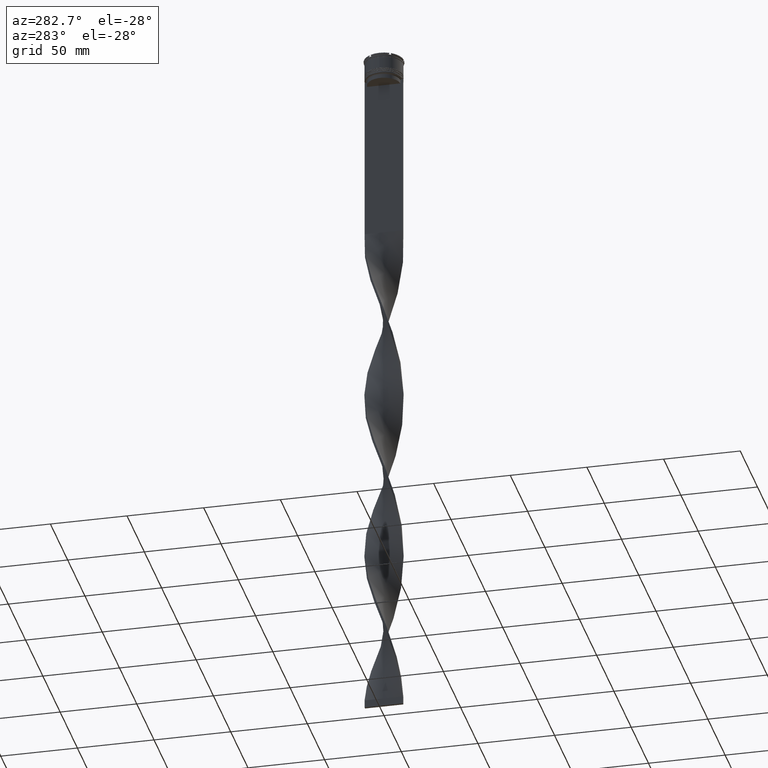
[diagram: clean part render]
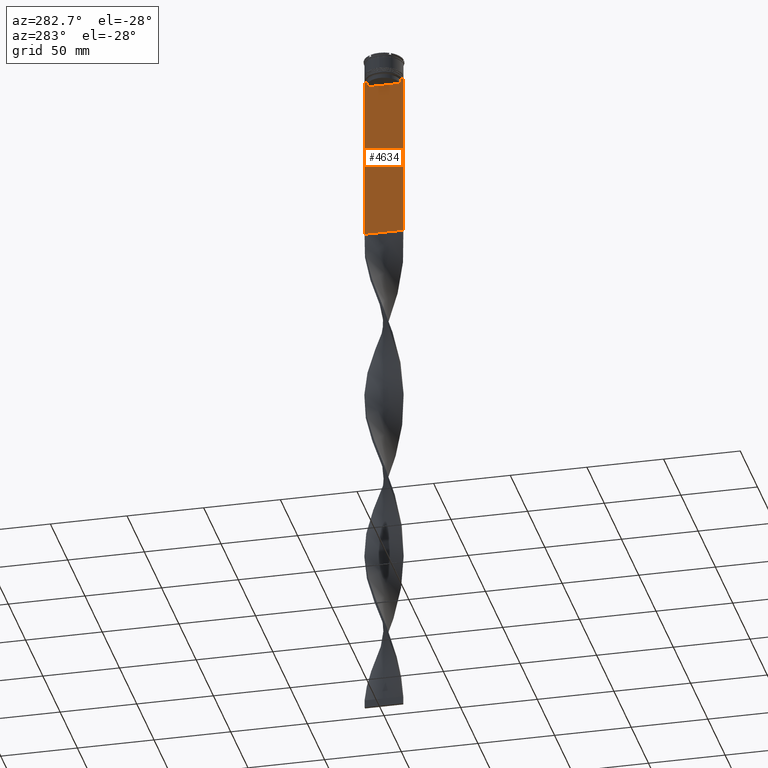
[diagram: same view with one face highlighted and labeled with its STEP entity id]
A machine part, auxiliary view. The second image highlights one B-rep face of the part: STEP entity #4634.
In plain terms, the highlighted planar face has unit normal (-1, 0, 0).
Its self-contained STEP definition (entity closure, byte-faithful):
#27 = CARTESIAN_POINT ( 'NONE',  ( -0.7499999999999997780, -12.50000000000000000, -123.0000000000000000 ) ) ;
#107 = LINE ( 'NONE', #1830, #1336 ) ;
#218 = VECTOR ( 'NONE', #2315, 1000.000000000000000 ) ;
#257 = AXIS2_PLACEMENT_3D ( 'NONE', #703, #2460, #2140 ) ;
#289 = ORIENTED_EDGE ( 'NONE', *, *, #653, .F. ) ;
#290 = VERTEX_POINT ( 'NONE', #3906 ) ;
#299 = LINE ( 'NONE', #1009, #953 ) ;
#339 = VECTOR ( 'NONE', #4211, 1000.000000000000000 ) ;
#367 = CARTESIAN_POINT ( 'NONE',  ( -0.7499999999999997780, 12.37729776647553059, -14.00000000000000178 ) ) ;
#456 = VERTEX_POINT ( 'NONE', #4483 ) ;
#469 = LINE ( 'NONE', #567, #4488 ) ;
#500 = VECTOR ( 'NONE', #550, 1000.000000000000000 ) ;
#550 = DIRECTION ( 'NONE',  ( 0.000000000000000000, 0.000000000000000000, -1.000000000000000000 ) ) ;
#564 = EDGE_CURVE ( 'NONE', #1970, #3686, #2130, .T. ) ;
#567 = CARTESIAN_POINT ( 'NONE',  ( -0.7499999999999997780, -12.50000000000000000, -14.00000000000000178 ) ) ;
#653 = EDGE_CURVE ( 'NONE', #2200, #1495, #2433, .T. ) ;
#673 = EDGE_CURVE ( 'NONE', #3972, #1042, #299, .T. ) ;
#703 = CARTESIAN_POINT ( 'NONE',  ( -0.7499999999999997780, -12.50000000000000000, 11.04495957273638673 ) ) ;
#762 = VERTEX_POINT ( 'NONE', #367 ) ;
#882 = EDGE_CURVE ( 'NONE', #456, #3972, #4008, .T. ) ;
#908 = LINE ( 'NONE', #3758, #500 ) ;
#953 = VECTOR ( 'NONE', #2476, 1000.000000000000000 ) ;
#984 = ORIENTED_EDGE ( 'NONE', *, *, #882, .F. ) ;
#1009 = CARTESIAN_POINT ( 'NONE',  ( -0.7499999999999997780, -10.87416663473574374, 0.000000000000000000 ) ) ;
#1016 = PLANE ( 'NONE',  #257 ) ;
#1036 = ORIENTED_EDGE ( 'NONE', *, *, #564, .F. ) ;
#1042 = VERTEX_POINT ( 'NONE', #4352 ) ;
#1047 = ORIENTED_EDGE ( 'NONE', *, *, #673, .F. ) ;
#1087 = CARTESIAN_POINT ( 'NONE',  ( -0.7499999999999997780, 12.50000000000000000, -14.00000000000000178 ) ) ;
#1150 = DIRECTION ( 'NONE',  ( 0.000000000000000000, 0.000000000000000000, -1.000000000000000000 ) ) ;
#1336 = VECTOR ( 'NONE', #1150, 1000.000000000000000 ) ;
#1495 = VERTEX_POINT ( 'NONE', #3077 ) ;
#1507 = ORIENTED_EDGE ( 'NONE', *, *, #2863, .F. ) ;
#1518 = CARTESIAN_POINT ( 'NONE',  ( -0.7499999999999997780, -12.50000000000000000, -14.00000000000000178 ) ) ;
#1519 = ORIENTED_EDGE ( 'NONE', *, *, #2137, .T. ) ;
#1691 = EDGE_LOOP ( 'NONE', ( #2643, #2935, #2423, #1519, #1036, #2682, #1507, #289, #3158, #1047, #984, #1754 ) ) ;
#1749 = VERTEX_POINT ( 'NONE', #4564 ) ;
#1754 = ORIENTED_EDGE ( 'NONE', *, *, #3487, .F. ) ;
#1784 = CARTESIAN_POINT ( 'NONE',  ( -0.7499999999999997780, 10.87416663473574374, -14.50000000000000000 ) ) ;
#1830 = CARTESIAN_POINT ( 'NONE',  ( -0.7499999999999997780, 12.50000000000000000, 11.04495957273638673 ) ) ;
#1842 = CARTESIAN_POINT ( 'NONE',  ( -0.7499999999999997780, 10.90000000000000213, -17.00000000000000000 ) ) ;
#1897 = LINE ( 'NONE', #4092, #218 ) ;
#1970 = VERTEX_POINT ( 'NONE', #27 ) ;
#2063 = CARTESIAN_POINT ( 'NONE',  ( -0.7499999999999997780, -12.50000000000000000, -14.00000000000000178 ) ) ;
#2130 = LINE ( 'NONE', #4581, #339 ) ;
#2137 = EDGE_CURVE ( 'NONE', #2696, #3686, #107, .T. ) ;
#2140 = DIRECTION ( 'NONE',  ( 0.000000000000000000, 0.000000000000000000, 1.000000000000000000 ) ) ;
#2174 = VECTOR ( 'NONE', #2995, 1000.000000000000000 ) ;
#2200 = VERTEX_POINT ( 'NONE', #3302 ) ;
#2204 = LINE ( 'NONE', #1518, #2174 ) ;
#2225 = CARTESIAN_POINT ( 'NONE',  ( -0.7499999999999997780, -10.87416663473574019, -17.00000000000000000 ) ) ;
#2290 = CARTESIAN_POINT ( 'NONE',  ( -0.7499999999999997780, -11.37530219378809093, -14.00000000000000178 ) ) ;
#2315 = DIRECTION ( 'NONE',  ( 0.000000000000000000, 0.000000000000000000, -1.000000000000000000 ) ) ;
#2423 = ORIENTED_EDGE ( 'NONE', *, *, #3983, .F. ) ;
#2433 = LINE ( 'NONE', #2063, #2690 ) ;
#2460 = DIRECTION ( 'NONE',  ( -1.000000000000000000, 0.000000000000000000, 0.000000000000000000 ) ) ;
#2476 = DIRECTION ( 'NONE',  ( -0.000000000000000000, -0.000000000000000000, 1.000000000000000000 ) ) ;
#2504 = FACE_OUTER_BOUND ( 'NONE', #1691, .T. ) ;
#2506 = B_SPLINE_CURVE_WITH_KNOTS ( 'NONE', 3,
 ( #2699, #2988, #2961, #2290 ),
 .UNSPECIFIED., .F., .F.,
 ( 4, 4 ),
 ( 0.05009718908159448147, 0.05081156920313960323 ),
 .UNSPECIFIED. ) ;
#2582 = EDGE_CURVE ( 'NONE', #762, #1749, #2747, .T. ) ;
#2643 = ORIENTED_EDGE ( 'NONE', *, *, #3859, .F. ) ;
#2682 = ORIENTED_EDGE ( 'NONE', *, *, #4194, .F. ) ;
#2690 = VECTOR ( 'NONE', #4273, 1000.000000000000000 ) ;
#2696 = VERTEX_POINT ( 'NONE', #1087 ) ;
#2699 = CARTESIAN_POINT ( 'NONE',  ( -0.7499999999999997780, -10.87416663473574374, -14.50000000000000000 ) ) ;
#2747 = LINE ( 'NONE', #3477, #4263 ) ;
#2760 = CARTESIAN_POINT ( 'NONE',  ( -0.7499999999999997780, 11.04122051153452055, -14.33334204648729582 ) ) ;
#2863 = EDGE_CURVE ( 'NONE', #1495, #4009, #469, .T. ) ;
#2890 = EDGE_CURVE ( 'NONE', #1042, #2200, #2506, .T. ) ;
#2935 = ORIENTED_EDGE ( 'NONE', *, *, #2582, .F. ) ;
#2961 = CARTESIAN_POINT ( 'NONE',  ( -0.7499999999999997780, -11.20826532207830439, -14.16667499063191471 ) ) ;
#2988 = CARTESIAN_POINT ( 'NONE',  ( -0.7499999999999997780, -11.04122051801870619, -14.33334204001847745 ) ) ;
#2995 = DIRECTION ( 'NONE',  ( 0.000000000000000000, -1.000000000000000000, 0.000000000000000000 ) ) ;
#3039 = DIRECTION ( 'NONE',  ( 0.000000000000000000, -1.000000000000000000, 0.000000000000000000 ) ) ;
#3077 = CARTESIAN_POINT ( 'NONE',  ( -0.7499999999999997780, -12.37729776647553059, -14.00000000000000178 ) ) ;
#3105 = CARTESIAN_POINT ( 'NONE',  ( -0.7499999999999997780, 11.37530219378809093, -14.00000000000000178 ) ) ;
#3158 = ORIENTED_EDGE ( 'NONE', *, *, #2890, .F. ) ;
#3302 = CARTESIAN_POINT ( 'NONE',  ( -0.7499999999999997780, -11.37530219378809093, -14.00000000000000178 ) ) ;
#3362 = CARTESIAN_POINT ( 'NONE',  ( -0.7499999999999997780, -12.50000000000000000, -14.00000000000000178 ) ) ;
#3469 = CARTESIAN_POINT ( 'NONE',  ( -0.7499999999999997780, 12.50000000000000000, -123.0000000000000000 ) ) ;
#3477 = CARTESIAN_POINT ( 'NONE',  ( -0.7499999999999997780, -12.50000000000000000, -14.00000000000000178 ) ) ;
#3487 = EDGE_CURVE ( 'NONE', #290, #456, #1897, .T. ) ;
#3639 = DIRECTION ( 'NONE',  ( 0.000000000000000000, -1.000000000000000000, 0.000000000000000000 ) ) ;
#3686 = VERTEX_POINT ( 'NONE', #3469 ) ;
#3758 = CARTESIAN_POINT ( 'NONE',  ( -0.7499999999999997780, -12.50000000000000000, 11.04495957273638673 ) ) ;
#3859 = EDGE_CURVE ( 'NONE', #1749, #290, #4278, .T. ) ;
#3906 = CARTESIAN_POINT ( 'NONE',  ( -0.7499999999999997780, 10.87416663473574374, -14.50000000000000000 ) ) ;
#3972 = VERTEX_POINT ( 'NONE', #2225 ) ;
#3983 = EDGE_CURVE ( 'NONE', #2696, #762, #2204, .T. ) ;
#4008 = LINE ( 'NONE', #1842, #4550 ) ;
#4009 = VERTEX_POINT ( 'NONE', #3362 ) ;
#4092 = CARTESIAN_POINT ( 'NONE',  ( -0.7499999999999997780, 10.87416663473574374, 0.000000000000000000 ) ) ;
#4194 = EDGE_CURVE ( 'NONE', #4009, #1970, #908, .T. ) ;
#4211 = DIRECTION ( 'NONE',  ( 0.000000000000000000, 1.000000000000000000, 0.000000000000000000 ) ) ;
#4263 = VECTOR ( 'NONE', #4594, 1000.000000000000000 ) ;
#4273 = DIRECTION ( 'NONE',  ( 0.000000000000000000, -1.000000000000000000, 0.000000000000000000 ) ) ;
#4278 = B_SPLINE_CURVE_WITH_KNOTS ( 'NONE', 3,
 ( #3105, #4535, #2760, #1784 ),
 .UNSPECIFIED., .F., .F.,
 ( 4, 4 ),
 ( 0.01936090553552769281, 0.02006881572333104116 ),
 .UNSPECIFIED. ) ;
#4352 = CARTESIAN_POINT ( 'NONE',  ( -0.7499999999999997780, -10.87416663473574374, -14.50000000000000000 ) ) ;
#4483 = CARTESIAN_POINT ( 'NONE',  ( -0.7499999999999997780, 10.87416663473574019, -17.00000000000000000 ) ) ;
#4488 = VECTOR ( 'NONE', #3039, 1000.000000000000000 ) ;
#4535 = CARTESIAN_POINT ( 'NONE',  ( -0.7499999999999997780, 11.20826531587977648, -14.16667499681701514 ) ) ;
#4550 = VECTOR ( 'NONE', #3639, 1000.000000000000000 ) ;
#4564 = CARTESIAN_POINT ( 'NONE',  ( -0.7499999999999997780, 11.37530219378809093, -14.00000000000000178 ) ) ;
#4581 = CARTESIAN_POINT ( 'NONE',  ( -0.7499999999999997780, -12.50000000000000000, -123.0000000000000000 ) ) ;
#4594 = DIRECTION ( 'NONE',  ( 0.000000000000000000, -1.000000000000000000, 0.000000000000000000 ) ) ;
#4634 = ADVANCED_FACE ( 'NONE', ( #2504 ), #1016, .T. ) ;